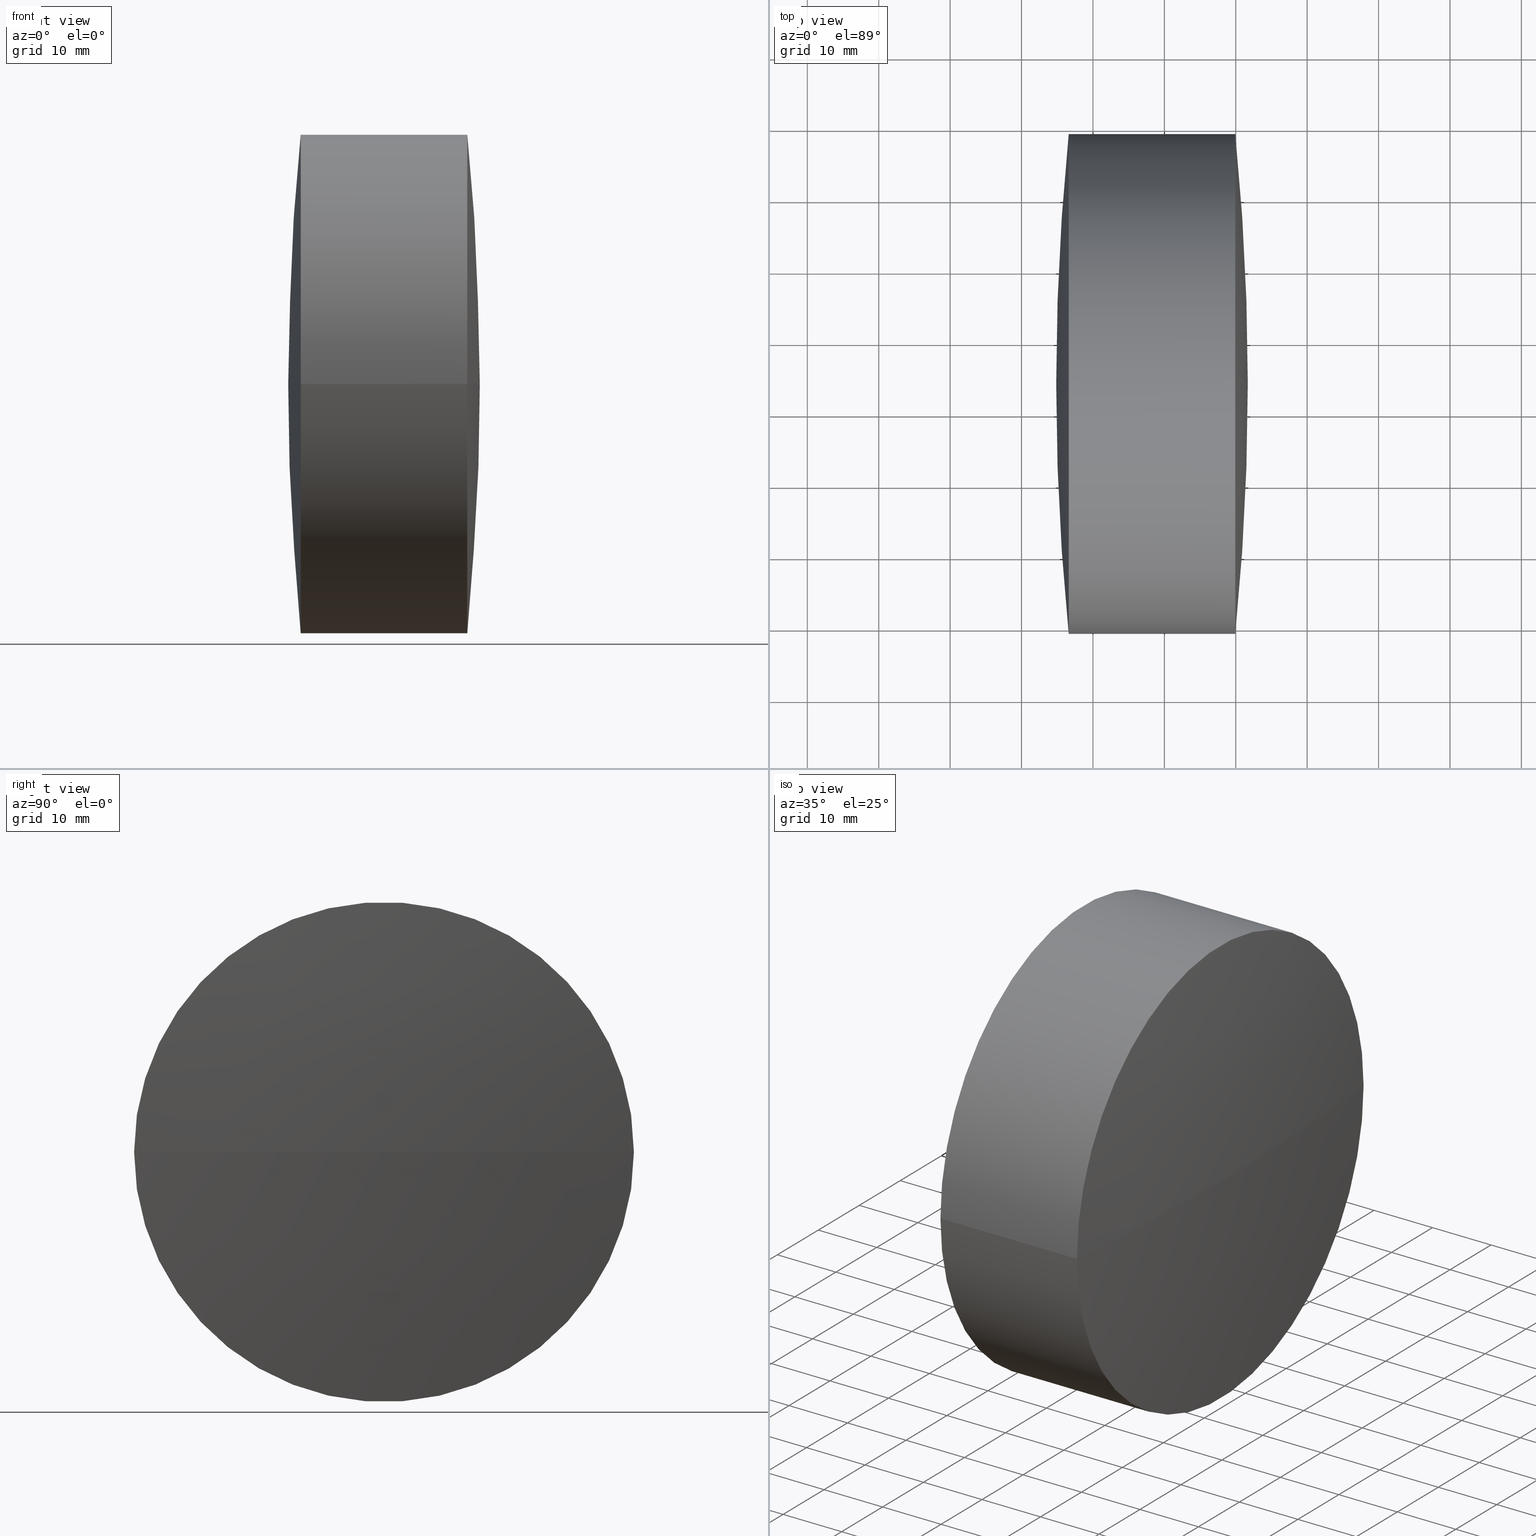
[diagram: canonical four-view strip — front | top / right | iso, engineering-drawing reading convention]
A machine part, canonical four-view strip (front | top / right | iso — engineering-drawing reading convention). The complete STEP part file that produces these views, byte-faithful:
ISO-10303-21;
HEADER;
FILE_DESCRIPTION (( 'STEP AP203' ),
    '1' );
FILE_NAME ('110008.STEP',
    '2019-06-24T09:22:14',
    ( '' ),
    ( '' ),
    'SwSTEP 2.0',
    'SolidWorks 2016',
    '' );
FILE_SCHEMA (( 'CONFIG_CONTROL_DESIGN' ));
ENDSEC;

DATA;
#1 = DIRECTION ( 'NONE',  ( -1.000000000000000000, 1.772041571645068800E-014, -0.0000000000000000000 ) ) ;
#2 = EDGE_CURVE ( 'NONE', #71, #199, #164, .T. ) ;
#3 = CARTESIAN_POINT ( 'NONE',  ( -99.06812836394114200, 133.9814138434225300, 0.0000000000000000000 ) ) ;
#4 = LOCAL_TIME ( 17, 22, 14.00000000000000000, #88 ) ;
#5 = DIRECTION ( 'NONE',  ( 0.0000000000000000000, 0.0000000000000000000, -1.000000000000000000 ) ) ;
#6 = PERSON_AND_ORGANIZATION ( #248, #46 ) ;
#7 = CARTESIAN_POINT ( 'NONE',  ( 226.6046127648167500, 98.98141384342911000, -4.286263797015637900E-015 ) ) ;
#8 = AXIS2_PLACEMENT_3D ( 'NONE', #77, #132, #74 ) ;
#9 = DIRECTION ( 'NONE',  ( 1.000000000000000000, 0.0000000000000000000, 0.0000000000000000000 ) ) ;
#10 = DIRECTION ( 'NONE',  ( 1.000000000000000000, 0.0000000000000000000, 0.0000000000000000000 ) ) ;
#11 = PRODUCT_DEFINITION_FORMATION_WITH_SPECIFIED_SOURCE ( '�κ�', '', #279, .NOT_KNOWN. ) ;
#12 = DATE_TIME_ROLE ( 'classification_date' ) ;
#13 = LOCAL_TIME ( 17, 22, 14.00000000000000000, #209 ) ;
#14 = LOCAL_TIME ( 17, 22, 14.00000000000000000, #278 ) ;
#15 = AXIS2_PLACEMENT_3D ( 'NONE', #185, #95, #117 ) ;
#16 = APPROVAL_STATUS ( 'not_yet_approved' ) ;
#17 = APPROVAL ( #100, 'δָ��' ) ;
#18 = CALENDAR_DATE ( 2019, 24, 6 ) ;
#19 = LOCAL_TIME ( 17, 22, 14.00000000000000000, #79 ) ;
#20 = ORIENTED_EDGE ( 'NONE', *, *, #258, .T. ) ;
#21 = CARTESIAN_POINT ( 'NONE',  ( 249.9366127648179900, 168.9814138434225900, 0.0000000000000000000 ) ) ;
#22 = PRODUCT_RELATED_PRODUCT_CATEGORY ( 'detail', '', ( #279 ) ) ;
#23 = PERSON_AND_ORGANIZATION ( #248, #46 ) ;
#24 = CC_DESIGN_APPROVAL ( #73, ( #11 ) ) ;
#25 = APPROVAL_PERSON_ORGANIZATION ( #244, #242, #239 ) ;
#26 = CARTESIAN_POINT ( 'NONE',  ( -99.06812836394114200, 133.9814138434225300, 0.0000000000000000000 ) ) ;
#27 = DATE_AND_TIME ( #90, #112 ) ;
#28 = CARTESIAN_POINT ( 'NONE',  ( 0.0000000000000000000, 0.0000000000000000000, 0.0000000000000000000 ) ) ;
#29 = CIRCLE ( 'NONE', #299, 350.7553411287618100 ) ;
#30 = DATE_TIME_ROLE ( 'creation_date' ) ;
#31 = DATE_TIME_ROLE ( 'creation_date' ) ;
#32 = SECURITY_CLASSIFICATION_LEVEL ( 'unclassified' ) ;
#33 = PERSON_AND_ORGANIZATION ( #248, #46 ) ;
#34 = VERTEX_POINT ( 'NONE', #21 ) ;
#35 = DATE_AND_TIME ( #140, #98 ) ;
#36 = LINE ( 'NONE', #92, #166 ) ;
#37 = PERSON_AND_ORGANIZATION ( #248, #46 ) ;
#38 = VECTOR ( 'NONE', #175, 1000.000000000000000 ) ;
#39 = AXIS2_PLACEMENT_3D ( 'NONE', #208, #72, #207 ) ;
#40 = CIRCLE ( 'NONE', #176, 35.00000000000030600 ) ;
#41 = DESIGN_CONTEXT ( 'detailed design', #54, 'design' ) ;
#42 = EDGE_CURVE ( 'NONE', #34, #71, #223, .T. ) ;
#43 = DIRECTION ( 'NONE',  ( 0.0000000000000000000, 0.0000000000000000000, 1.000000000000000000 ) ) ;
#44 = CARTESIAN_POINT ( 'NONE',  ( 226.6046127648173800, 133.9814138434227000, 0.0000000000000000000 ) ) ;
#45 = LOCAL_TIME ( 17, 22, 14.00000000000000000, #168 ) ;
#46 = ORGANIZATION ( 'δָ��', 'δָ��', '' ) ;
#47 = ORIENTED_EDGE ( 'NONE', *, *, #197, .F. ) ;
#48 = CC_DESIGN_APPROVAL ( #156, ( #304 ) ) ;
#49 =( LENGTH_UNIT ( ) NAMED_UNIT ( * ) SI_UNIT ( .MILLI., .METRE. ) );
#50 = CARTESIAN_POINT ( 'NONE',  ( 575.6093538935799600, 133.9814138434221300, 0.0000000000000000000 ) ) ;
#51 = CALENDAR_DATE ( 2019, 24, 6 ) ;
#52 = SPHERICAL_SURFACE ( 'NONE', #211, 350.7553411287590800 ) ;
#53 = DIRECTION ( 'NONE',  ( 0.0000000000000000000, 0.0000000000000000000, 1.000000000000000000 ) ) ;
#54 = APPLICATION_CONTEXT ( 'configuration controlled 3d designs of mechanical parts and assemblies' ) ;
#55 = SPHERICAL_SURFACE ( 'NONE', #62, 350.7553411287618100 ) ;
#56 = APPROVAL_ROLE ( '' ) ;
#57 = ORIENTED_EDGE ( 'NONE', *, *, #220, .T. ) ;
#58 = APPLICATION_PROTOCOL_DEFINITION ( 'international standard', 'config_control_design', 1994, #142 ) ;
#59 = AXIS2_PLACEMENT_3D ( 'NONE', #28, #182, #10 ) ;
#60 = MECHANICAL_CONTEXT ( 'NONE', #213, 'mechanical' ) ;
#61 = VERTEX_POINT ( 'NONE', #66 ) ;
#62 = AXIS2_PLACEMENT_3D ( 'NONE', #50, #262, #179 ) ;
#63 = PERSON_AND_ORGANIZATION ( #248, #46 ) ;
#64 = PERSON_AND_ORGANIZATION ( #248, #46 ) ;
#65 = EDGE_CURVE ( 'NONE', #170, #199, #36, .T. ) ;
#66 = CARTESIAN_POINT ( 'NONE',  ( 224.8540127648180900, 133.9814138434283800, 0.0000000000000000000 ) ) ;
#67 = COORDINATED_UNIVERSAL_TIME_OFFSET ( 8, 0, .AHEAD. ) ;
#68 = DIRECTION ( 'NONE',  ( 1.772531508114250600E-014, 1.000000000000000000, 0.0000000000000000000 ) ) ;
#69 = APPROVAL_PERSON_ORGANIZATION ( #149, #17, #295 ) ;
#70 = CIRCLE ( 'NONE', #288, 350.7553411287618100 ) ;
#71 = VERTEX_POINT ( 'NONE', #110 ) ;
#72 = DIRECTION ( 'NONE',  ( -1.000000000000000000, 1.772041571645068800E-014, -0.0000000000000000000 ) ) ;
#73 = APPROVAL ( #80, 'δָ��' ) ;
#74 = DIRECTION ( 'NONE',  ( 0.0000000000000000000, 1.000000000000000000, 1.224646799147353200E-016 ) ) ;
#75 = DIRECTION ( 'NONE',  ( 1.000000000000000000, 0.0000000000000000000, 0.0000000000000000000 ) ) ;
#76 = APPROVAL ( #267, 'δָ��' ) ;
#77 = CARTESIAN_POINT ( 'NONE',  ( -99.06812836394114200, 133.9814138434225300, 0.0000000000000000000 ) ) ;
#78 = APPROVAL_PERSON_ORGANIZATION ( #173, #156, #187 ) ;
#79 = COORDINATED_UNIVERSAL_TIME_OFFSET ( 8, 0, .AHEAD. ) ;
#80 = APPROVAL_STATUS ( 'not_yet_approved' ) ;
#81 = PERSON_AND_ORGANIZATION_ROLE ( 'design_owner' ) ;
#82 = CC_DESIGN_PERSON_AND_ORGANIZATION_ASSIGNMENT ( #145, #237, ( #11 ) ) ;
#83 = EDGE_LOOP ( 'NONE', ( #143, #57, #105, #280 ) ) ;
#84 = APPLICATION_PROTOCOL_DEFINITION ( 'international standard', 'config_control_design', 1994, #144 ) ;
#85 = APPROVAL_PERSON_ORGANIZATION ( #33, #167, #138 ) ;
#86 = CYLINDRICAL_SURFACE ( 'NONE', #266, 35.00000000000009900 ) ;
#87 = PRODUCT ( '110008', '110008', '', ( #60 ) ) ;
#88 = COORDINATED_UNIVERSAL_TIME_OFFSET ( 8, 0, .AHEAD. ) ;
#89 = CC_DESIGN_PERSON_AND_ORGANIZATION_ASSIGNMENT ( #252, #81, ( #279 ) ) ;
#90 = CALENDAR_DATE ( 2019, 24, 6 ) ;
#91 = VERTEX_POINT ( 'NONE', #253 ) ;
#92 = CARTESIAN_POINT ( 'NONE',  ( 221.4904475524727200, 98.98141384342270000, 0.0000000000000000000 ) ) ;
#93 = COORDINATED_UNIVERSAL_TIME_OFFSET ( 8, 0, .AHEAD. ) ;
#94 = CALENDAR_DATE ( 2019, 24, 6 ) ;
#95 = DIRECTION ( 'NONE',  ( 0.0000000000000000000, 0.0000000000000000000, -1.000000000000000000 ) ) ;
#96 = DIRECTION ( 'NONE',  ( 0.0000000000000000000, 1.000000000000000000, 1.224646799147353200E-016 ) ) ;
#97 = DIRECTION ( 'NONE',  ( 2.170125038671178500E-030, 1.224646799147353200E-016, -1.000000000000000000 ) ) ;
#98 = LOCAL_TIME ( 17, 22, 14.00000000000000000, #152 ) ;
#99 = FACE_OUTER_BOUND ( 'NONE', #274, .T. ) ;
#100 = APPROVAL_STATUS ( 'not_yet_approved' ) ;
#101 = SECURITY_CLASSIFICATION_LEVEL ( 'unclassified' ) ;
#102 = AXIS2_PLACEMENT_3D ( 'NONE', #184, #53, #75 ) ;
#103 = ADVANCED_FACE ( 'NONE', ( #297 ), #204, .T. ) ;
#104 = PRODUCT_DEFINITION ( 'δ֪', '', #235, #109 ) ;
#105 = ORIENTED_EDGE ( 'NONE', *, *, #65, .T. ) ;
#106 = CC_DESIGN_DATE_AND_TIME_ASSIGNMENT ( #35, #31, ( #224 ) ) ;
#107 = CC_DESIGN_PERSON_AND_ORGANIZATION_ASSIGNMENT ( #23, #163, ( #104 ) ) ;
#108 = FACE_OUTER_BOUND ( 'NONE', #233, .T. ) ;
#109 = DESIGN_CONTEXT ( 'detailed design', #142, 'design' ) ;
#110 = CARTESIAN_POINT ( 'NONE',  ( 226.6046127648180300, 168.9814138434219000, 0.0000000000000000000 ) ) ;
#111 = LOCAL_TIME ( 17, 22, 14.00000000000000000, #93 ) ;
#112 = LOCAL_TIME ( 17, 22, 14.00000000000000000, #141 ) ;
#113 = CC_DESIGN_APPROVAL ( #242, ( #224 ) ) ;
#114 = ORIENTED_EDGE ( 'NONE', *, *, #2, .T. ) ;
#115 = DIRECTION ( 'NONE',  ( 1.000000000000000000, 0.0000000000000000000, 0.0000000000000000000 ) ) ;
#116 = CC_DESIGN_APPROVAL ( #76, ( #104 ) ) ;
#117 = DIRECTION ( 'NONE',  ( 1.772531508114236400E-014, 1.000000000000000000, 0.0000000000000000000 ) ) ;
#118 = CLOSED_SHELL ( 'NONE', ( #194, #103, #303, #276, #148, #275 ) ) ;
#119 = APPROVAL_DATE_TIME ( #236, #167 ) ;
#120 = CALENDAR_DATE ( 2019, 24, 6 ) ;
#121 = APPROVAL_STATUS ( 'not_yet_approved' ) ;
#122 = APPROVAL_STATUS ( 'not_yet_approved' ) ;
#123 = CIRCLE ( 'NONE', #214, 350.7553411287590800 ) ;
#124 = EDGE_LOOP ( 'NONE', ( #226, #210, #127 ) ) ;
#125 = EDGE_CURVE ( 'NONE', #199, #71, #150, .T. ) ;
#126 = SPHERICAL_SURFACE ( 'NONE', #15, 350.7553411287618100 ) ;
#127 = ORIENTED_EDGE ( 'NONE', *, *, #220, .F. ) ;
#128 = CARTESIAN_POINT ( 'NONE',  ( 221.4904475524733100, 133.9814138434227900, 0.0000000000000000000 ) ) ;
#129 = PERSON_AND_ORGANIZATION ( #248, #46 ) ;
#130 = COORDINATED_UNIVERSAL_TIME_OFFSET ( 8, 0, .AHEAD. ) ;
#131 = CARTESIAN_POINT ( 'NONE',  ( 249.9366127648167400, 98.98141384341606400, -4.286263797015769600E-015 ) ) ;
#132 = DIRECTION ( 'NONE',  ( 2.170125038671178500E-030, 1.224646799147353200E-016, -1.000000000000000000 ) ) ;
#133 = ORIENTED_EDGE ( 'NONE', *, *, #243, .F. ) ;
#134 = CC_DESIGN_PERSON_AND_ORGANIZATION_ASSIGNMENT ( #64, #162, ( #235 ) ) ;
#135 = PERSON_AND_ORGANIZATION ( #248, #46 ) ;
#136 = DATE_AND_TIME ( #296, #165 ) ;
#137 = PERSON_AND_ORGANIZATION_ROLE ( 'creator' ) ;
#138 = APPROVAL_ROLE ( '' ) ;
#139 = PERSON_AND_ORGANIZATION_ROLE ( 'creator' ) ;
#140 = CALENDAR_DATE ( 2019, 24, 6 ) ;
#141 = COORDINATED_UNIVERSAL_TIME_OFFSET ( 8, 0, .AHEAD. ) ;
#142 = APPLICATION_CONTEXT ( 'configuration controlled 3d designs of mechanical parts and assemblies' ) ;
#143 = ORIENTED_EDGE ( 'NONE', *, *, #42, .F. ) ;
#144 = APPLICATION_CONTEXT ( 'configuration controlled 3d designs of mechanical parts and assemblies' ) ;
#145 = PERSON_AND_ORGANIZATION ( #248, #46 ) ;
#146 = EDGE_CURVE ( 'NONE', #71, #61, #29, .T. ) ;
#147 = DATE_AND_TIME ( #215, #45 ) ;
#148 = ADVANCED_FACE ( 'NONE', ( #108 ), #52, .T. ) ;
#149 = PERSON_AND_ORGANIZATION ( #248, #46 ) ;
#150 = CIRCLE ( 'NONE', #281, 34.99999999999989300 ) ;
#151 = SECURITY_CLASSIFICATION ( '', '', #32 ) ;
#152 = COORDINATED_UNIVERSAL_TIME_OFFSET ( 8, 0, .AHEAD. ) ;
#153 = ORIENTED_EDGE ( 'NONE', *, *, #146, .T. ) ;
#154 = DIRECTION ( 'NONE',  ( -1.000000000000000000, 1.772041571645068800E-014, -0.0000000000000000000 ) ) ;
#155 = CARTESIAN_POINT ( 'NONE',  ( -99.06812836394114200, 133.9814138434225300, 0.0000000000000000000 ) ) ;
#156 = APPROVAL ( #122, 'δָ��' ) ;
#157 = APPROVAL_DATE_TIME ( #136, #76 ) ;
#158 = ADVANCED_BREP_SHAPE_REPRESENTATION ( '110008', ( #247, #102 ), #229 ) ;
#159 = CARTESIAN_POINT ( 'NONE',  ( 575.6093538935799600, 133.9814138434221300, 0.0000000000000000000 ) ) ;
#160 = CC_DESIGN_DATE_AND_TIME_ASSIGNMENT ( #216, #30, ( #104 ) ) ;
#161 = AXIS2_PLACEMENT_3D ( 'NONE', #205, #293, #231 ) ;
#162 = PERSON_AND_ORGANIZATION_ROLE ( 'creator' ) ;
#163 = PERSON_AND_ORGANIZATION_ROLE ( 'creator' ) ;
#164 = CIRCLE ( 'NONE', #246, 34.99999999999989300 ) ;
#165 = LOCAL_TIME ( 17, 22, 14.00000000000000000, #130 ) ;
#166 = VECTOR ( 'NONE', #200, 1000.000000000000000 ) ;
#167 = APPROVAL ( #16, 'δָ��' ) ;
#168 = COORDINATED_UNIVERSAL_TIME_OFFSET ( 8, 0, .AHEAD. ) ;
#169 = CC_DESIGN_APPROVAL ( #17, ( #235 ) ) ;
#170 = VERTEX_POINT ( 'NONE', #131 ) ;
#171 = DIRECTION ( 'NONE',  ( 0.0000000000000000000, 0.0000000000000000000, -1.000000000000000000 ) ) ;
#172 = CC_DESIGN_PERSON_AND_ORGANIZATION_ASSIGNMENT ( #305, #217, ( #87 ) ) ;
#173 = PERSON_AND_ORGANIZATION ( #248, #46 ) ;
#174 = APPROVAL_DATE_TIME ( #245, #17 ) ;
#175 = DIRECTION ( 'NONE',  ( -1.000000000000000000, 1.772041571645068800E-014, -0.0000000000000000000 ) ) ;
#176 = AXIS2_PLACEMENT_3D ( 'NONE', #290, #256, #259 ) ;
#177 = DIRECTION ( 'NONE',  ( -1.000000000000000000, 1.772041571645068800E-014, -0.0000000000000000000 ) ) ;
#178 = DIRECTION ( 'NONE',  ( 0.0000000000000000000, 0.0000000000000000000, 1.000000000000000000 ) ) ;
#179 = DIRECTION ( 'NONE',  ( 1.772531508114236400E-014, 1.000000000000000000, 0.0000000000000000000 ) ) ;
#180 = SHAPE_DEFINITION_REPRESENTATION ( #272, #158 ) ;
#181 = ORIENTED_EDGE ( 'NONE', *, *, #125, .F. ) ;
#182 = DIRECTION ( 'NONE',  ( 0.0000000000000000000, 0.0000000000000000000, 1.000000000000000000 ) ) ;
#183 = CC_DESIGN_APPROVAL ( #167, ( #151 ) ) ;
#184 = CARTESIAN_POINT ( 'NONE',  ( 0.0000000000000000000, 0.0000000000000000000, 0.0000000000000000000 ) ) ;
#185 = CARTESIAN_POINT ( 'NONE',  ( 575.6093538935799600, 133.9814138434221300, 0.0000000000000000000 ) ) ;
#186 = FACE_OUTER_BOUND ( 'NONE', #192, .T. ) ;
#187 = APPROVAL_ROLE ( '' ) ;
#188 = PERSON_AND_ORGANIZATION_ROLE ( 'classification_officer' ) ;
#189 = MECHANICAL_CONTEXT ( 'NONE', #144, 'mechanical' ) ;
#190 = PRODUCT_RELATED_PRODUCT_CATEGORY ( 'detail', '', ( #87 ) ) ;
#191 = CYLINDRICAL_SURFACE ( 'NONE', #161, 35.00000000000009900 ) ;
#192 = EDGE_LOOP ( 'NONE', ( #133, #302, #153 ) ) ;
#193 = CC_DESIGN_PERSON_AND_ORGANIZATION_ASSIGNMENT ( #203, #188, ( #151 ) ) ;
#194 = ADVANCED_FACE ( 'NONE', ( #99 ), #86, .T. ) ;
#195 = APPROVAL_DATE_TIME ( #300, #156 ) ;
#196 = ORIENTED_EDGE ( 'NONE', *, *, #243, .T. ) ;
#197 = EDGE_CURVE ( 'NONE', #170, #34, #40, .T. ) ;
#198 = APPROVAL_PERSON_ORGANIZATION ( #129, #73, #56 ) ;
#199 = VERTEX_POINT ( 'NONE', #7 ) ;
#200 = DIRECTION ( 'NONE',  ( -1.000000000000000000, 1.772041571645068800E-014, -0.0000000000000000000 ) ) ;
#201 = CARTESIAN_POINT ( 'NONE',  ( 221.4904475524739400, 168.9814138434229000, 4.286263797015748300E-015 ) ) ;
#202 = CALENDAR_DATE ( 2019, 24, 6 ) ;
#203 = PERSON_AND_ORGANIZATION ( #248, #46 ) ;
#204 = SPHERICAL_SURFACE ( 'NONE', #206, 350.7553411287590800 ) ;
#205 = CARTESIAN_POINT ( 'NONE',  ( 221.4904475524733100, 133.9814138434227900, 0.0000000000000000000 ) ) ;
#206 = AXIS2_PLACEMENT_3D ( 'NONE', #3, #5, #283 ) ;
#207 = DIRECTION ( 'NONE',  ( -1.744636181553802200E-014, -1.000000000000000000, 0.0000000000000000000 ) ) ;
#208 = CARTESIAN_POINT ( 'NONE',  ( 249.9366127648173700, 133.9814138434223000, 0.0000000000000000000 ) ) ;
#209 = COORDINATED_UNIVERSAL_TIME_OFFSET ( 8, 0, .AHEAD. ) ;
#210 = ORIENTED_EDGE ( 'NONE', *, *, #240, .T. ) ;
#211 = AXIS2_PLACEMENT_3D ( 'NONE', #155, #171, #68 ) ;
#212 = APPLICATION_PROTOCOL_DEFINITION ( 'international standard', 'config_control_design', 1994, #213 ) ;
#213 = APPLICATION_CONTEXT ( 'configuration controlled 3d designs of mechanical parts and assemblies' ) ;
#214 = AXIS2_PLACEMENT_3D ( 'NONE', #26, #178, #9 ) ;
#215 = CALENDAR_DATE ( 2019, 24, 6 ) ;
#216 = DATE_AND_TIME ( #289, #19 ) ;
#217 = PERSON_AND_ORGANIZATION_ROLE ( 'design_owner' ) ;
#218 = EDGE_LOOP ( 'NONE', ( #114, #196, #284 ) ) ;
#219 = PERSON_AND_ORGANIZATION_ROLE ( 'design_supplier' ) ;
#220 = EDGE_CURVE ( 'NONE', #34, #170, #228, .T. ) ;
#221 = UNCERTAINTY_MEASURE_WITH_UNIT (LENGTH_MEASURE( 1.000000000000000100E-005 ), #49, 'distance_accuracy_value', 'NONE');
#222 = CC_DESIGN_PERSON_AND_ORGANIZATION_ASSIGNMENT ( #282, #137, ( #224 ) ) ;
#223 = LINE ( 'NONE', #201, #38 ) ;
#224 = PRODUCT_DEFINITION ( 'δ֪', '', #11, #41 ) ;
#225 = DATE_AND_TIME ( #51, #13 ) ;
#226 = ORIENTED_EDGE ( 'NONE', *, *, #258, .F. ) ;
#227 = CC_DESIGN_SECURITY_CLASSIFICATION ( #151, ( #235 ) ) ;
#228 = CIRCLE ( 'NONE', #39, 35.00000000000030600 ) ;
#229 =( GEOMETRIC_REPRESENTATION_CONTEXT ( 3 ) GLOBAL_UNCERTAINTY_ASSIGNED_CONTEXT ( ( #221 ) ) GLOBAL_UNIT_ASSIGNED_CONTEXT ( ( #49, #291, #234 ) ) REPRESENTATION_CONTEXT ( 'NONE', 'WORKASPACE' ) );
#230 = CARTESIAN_POINT ( 'NONE',  ( 575.6093538935799600, 133.9814138434221300, 0.0000000000000000000 ) ) ;
#231 = DIRECTION ( 'NONE',  ( -1.744636181553812300E-014, -1.000000000000000000, 0.0000000000000000000 ) ) ;
#232 = APPROVAL_PERSON_ORGANIZATION ( #37, #76, #264 ) ;
#233 = EDGE_LOOP ( 'NONE', ( #270, #20, #47 ) ) ;
#234 =( NAMED_UNIT ( * ) SI_UNIT ( $, .STERADIAN. ) SOLID_ANGLE_UNIT ( ) );
#235 = PRODUCT_DEFINITION_FORMATION_WITH_SPECIFIED_SOURCE ( '�κ�', '', #87, .NOT_KNOWN. ) ;
#236 = DATE_AND_TIME ( #202, #4 ) ;
#237 = PERSON_AND_ORGANIZATION_ROLE ( 'design_supplier' ) ;
#238 = CC_DESIGN_DATE_AND_TIME_ASSIGNMENT ( #147, #12, ( #304 ) ) ;
#239 = APPROVAL_ROLE ( '' ) ;
#240 = EDGE_CURVE ( 'NONE', #91, #170, #241, .T. ) ;
#241 = CIRCLE ( 'NONE', #8, 350.7553411287590800 ) ;
#242 = APPROVAL ( #121, 'δָ��' ) ;
#243 = EDGE_CURVE ( 'NONE', #199, #61, #70, .T. ) ;
#244 = PERSON_AND_ORGANIZATION ( #248, #46 ) ;
#245 = DATE_AND_TIME ( #120, #14 ) ;
#246 = AXIS2_PLACEMENT_3D ( 'NONE', #44, #177, #286 ) ;
#247 = MANIFOLD_SOLID_BREP ( '��ת1', #118 ) ;
#248 = PERSON ( 'δָ��', 'δָ��', 'δָ��', ('δָ��'), ('δָ��'), ('δָ��') ) ;
#249 = ORIENTED_EDGE ( 'NONE', *, *, #65, .F. ) ;
#250 = CC_DESIGN_PERSON_AND_ORGANIZATION_ASSIGNMENT ( #6, #219, ( #235 ) ) ;
#251 = DIRECTION ( 'NONE',  ( -1.744636181553822700E-014, -1.000000000000000000, 0.0000000000000000000 ) ) ;
#252 = PERSON_AND_ORGANIZATION ( #248, #46 ) ;
#253 = CARTESIAN_POINT ( 'NONE',  ( 251.6872127648179900, 133.9814138434163300, 0.0000000000000000000 ) ) ;
#254 = CARTESIAN_POINT ( 'NONE',  ( 226.6046127648173800, 133.9814138434227000, 0.0000000000000000000 ) ) ;
#255 = CC_DESIGN_SECURITY_CLASSIFICATION ( #304, ( #11 ) ) ;
#256 = DIRECTION ( 'NONE',  ( -1.000000000000000000, 1.772041571645068800E-014, -0.0000000000000000000 ) ) ;
#257 = ORIENTED_EDGE ( 'NONE', *, *, #42, .T. ) ;
#258 = EDGE_CURVE ( 'NONE', #91, #34, #123, .T. ) ;
#259 = DIRECTION ( 'NONE',  ( -1.744636181553802200E-014, -1.000000000000000000, 0.0000000000000000000 ) ) ;
#260 = DIRECTION ( 'NONE',  ( -1.744636181553812300E-014, -1.000000000000000000, 0.0000000000000000000 ) ) ;
#261 = CC_DESIGN_PERSON_AND_ORGANIZATION_ASSIGNMENT ( #63, #271, ( #304 ) ) ;
#262 = DIRECTION ( 'NONE',  ( 0.0000000000000000000, 0.0000000000000000000, -1.000000000000000000 ) ) ;
#263 = FACE_OUTER_BOUND ( 'NONE', #218, .T. ) ;
#264 = APPROVAL_ROLE ( '' ) ;
#265 = APPLICATION_PROTOCOL_DEFINITION ( 'international standard', 'config_control_design', 1994, #54 ) ;
#266 = AXIS2_PLACEMENT_3D ( 'NONE', #128, #154, #260 ) ;
#267 = APPROVAL_STATUS ( 'not_yet_approved' ) ;
#268 = APPROVAL_DATE_TIME ( #225, #73 ) ;
#269 = FACE_OUTER_BOUND ( 'NONE', #83, .T. ) ;
#270 = ORIENTED_EDGE ( 'NONE', *, *, #240, .F. ) ;
#271 = PERSON_AND_ORGANIZATION_ROLE ( 'classification_officer' ) ;
#272 = PRODUCT_DEFINITION_SHAPE ( 'NONE', 'NONE',  #224 ) ;
#273 = CC_DESIGN_DATE_AND_TIME_ASSIGNMENT ( #27, #294, ( #151 ) ) ;
#274 = EDGE_LOOP ( 'NONE', ( #292, #257, #181, #249 ) ) ;
#275 = ADVANCED_FACE ( 'NONE', ( #269 ), #191, .T. ) ;
#276 = ADVANCED_FACE ( 'NONE', ( #186 ), #126, .T. ) ;
#277 = DATE_AND_TIME ( #94, #287 ) ;
#278 = COORDINATED_UNIVERSAL_TIME_OFFSET ( 8, 0, .AHEAD. ) ;
#279 = PRODUCT ( '110008', '110008', '', ( #189 ) ) ;
#280 = ORIENTED_EDGE ( 'NONE', *, *, #2, .F. ) ;
#281 = AXIS2_PLACEMENT_3D ( 'NONE', #254, #1, #251 ) ;
#282 = PERSON_AND_ORGANIZATION ( #248, #46 ) ;
#283 = DIRECTION ( 'NONE',  ( 1.772531508114250600E-014, 1.000000000000000000, 0.0000000000000000000 ) ) ;
#284 = ORIENTED_EDGE ( 'NONE', *, *, #146, .F. ) ;
#285 = PRODUCT_DEFINITION_SHAPE ( 'NONE', 'NONE',  #104 ) ;
#286 = DIRECTION ( 'NONE',  ( -1.744636181553822700E-014, -1.000000000000000000, 0.0000000000000000000 ) ) ;
#287 = LOCAL_TIME ( 17, 22, 14.00000000000000000, #67 ) ;
#288 = AXIS2_PLACEMENT_3D ( 'NONE', #159, #97, #96 ) ;
#289 = CALENDAR_DATE ( 2019, 24, 6 ) ;
#290 = CARTESIAN_POINT ( 'NONE',  ( 249.9366127648173700, 133.9814138434223000, 0.0000000000000000000 ) ) ;
#291 =( NAMED_UNIT ( * ) PLANE_ANGLE_UNIT ( ) SI_UNIT ( $, .RADIAN. ) );
#292 = ORIENTED_EDGE ( 'NONE', *, *, #197, .T. ) ;
#293 = DIRECTION ( 'NONE',  ( -1.000000000000000000, 1.772041571645068800E-014, -0.0000000000000000000 ) ) ;
#294 = DATE_TIME_ROLE ( 'classification_date' ) ;
#295 = APPROVAL_ROLE ( '' ) ;
#296 = CALENDAR_DATE ( 2019, 24, 6 ) ;
#297 = FACE_OUTER_BOUND ( 'NONE', #124, .T. ) ;
#298 = CC_DESIGN_PERSON_AND_ORGANIZATION_ASSIGNMENT ( #135, #139, ( #11 ) ) ;
#299 = AXIS2_PLACEMENT_3D ( 'NONE', #230, #43, #115 ) ;
#300 = DATE_AND_TIME ( #18, #111 ) ;
#301 = APPROVAL_DATE_TIME ( #277, #242 ) ;
#302 = ORIENTED_EDGE ( 'NONE', *, *, #125, .T. ) ;
#303 = ADVANCED_FACE ( 'NONE', ( #263 ), #55, .T. ) ;
#304 = SECURITY_CLASSIFICATION ( '', '', #101 ) ;
#305 = PERSON_AND_ORGANIZATION ( #248, #46 ) ;
ENDSEC;
END-ISO-10303-21;
